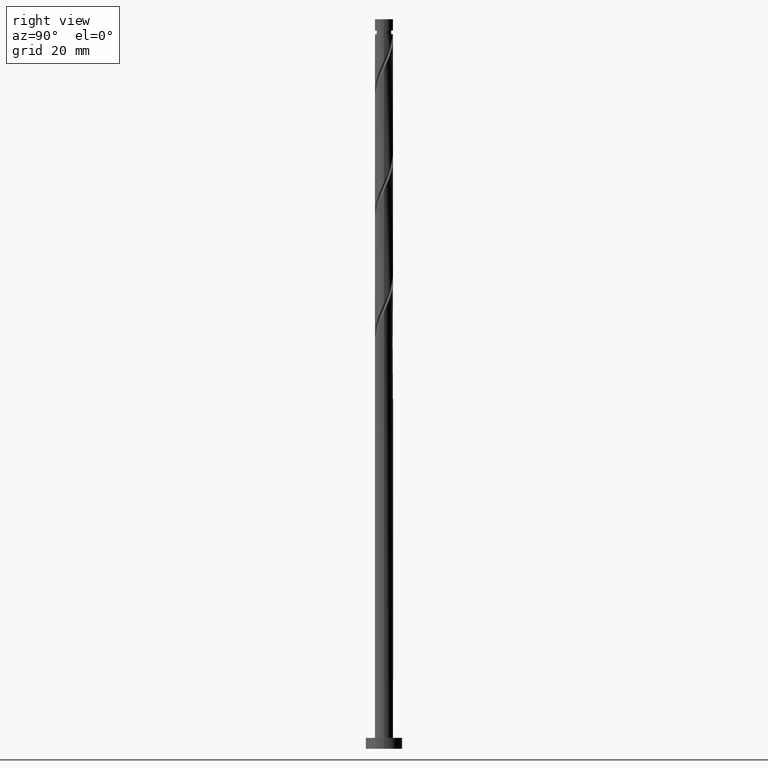
[diagram: clean part render]
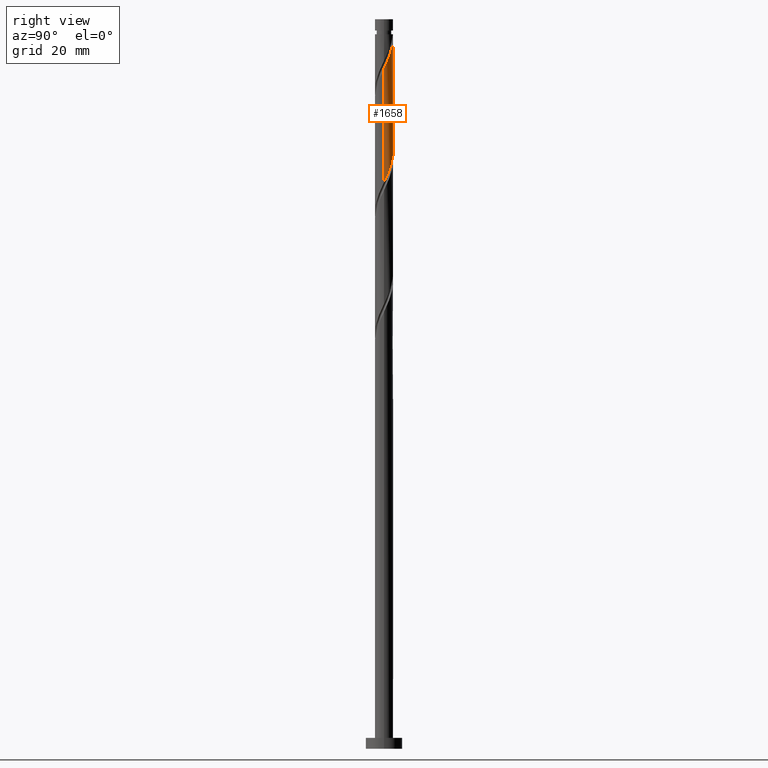
[diagram: same view with one face highlighted and labeled with its STEP entity id]
A machine part, right view. The second image highlights one B-rep face of the part: STEP entity #1658.
In plain terms, the highlighted cylindrical surface (edge-blend (fillet) strip) has radius 2.5 mm, axis along (-0, -0, -1).
Its self-contained STEP definition (entity closure, byte-faithful):
#22 = VERTEX_POINT ( 'NONE', #278 ) ;
#89 = CARTESIAN_POINT ( 'NONE',  ( -1.655019618953360139, 1.902429351286329506, 167.4116340058108676 ) ) ;
#97 = CARTESIAN_POINT ( 'NONE',  ( -0.4974937185533108153, 2.450000000000002398, 195.8838562280330677 ) ) ;
#106 = CARTESIAN_POINT ( 'NONE',  ( 2.384503709418420048, 0.8200423376424310629, 188.2449673391442104 ) ) ;
#114 = CARTESIAN_POINT ( 'NONE',  ( 1.873015379995222940, 1.655842198490353523, 190.3283006724774680 ) ) ;
#139 = EDGE_CURVE ( 'NONE', #1474, #810, #1250, .T. ) ;
#140 = CARTESIAN_POINT ( 'NONE',  ( -0.4974937185533108153, 2.450000000000002842, 195.8838562280330393 ) ) ;
#160 =( BOUNDED_CURVE ( )  B_SPLINE_CURVE ( 2, ( #750, #1162, #502, #106, #1303, #374, #114, #1708, #485, #1021, #1610, #1590, #911, #1732, #97 ),
 .UNSPECIFIED., .F., .F. ) 
 B_SPLINE_CURVE_WITH_KNOTS ( ( 3, 2, 2, 2, 2, 2, 2, 3 ),
 ( 0.6795317669814470163, 0.6875000000000000000, 0.6979166666666666297, 0.7083333333333331483, 0.7187499999999997780, 0.7291666666666665186, 0.7395833333333330373, 0.7499999999999996669 ),
 .UNSPECIFIED. ) 
 CURVE ( )  GEOMETRIC_REPRESENTATION_ITEM ( )  RATIONAL_B_SPLINE_CURVE ( ( 0.9062941362546534929, 0.9031415850403589074, 0.9090909090909338186, 0.9013135103398520753, 0.9090909090909338186, 0.9013135103398520753, 0.9090909090909338186, 0.9013135103398520753, 0.9090909090909338186, 0.9013135103398520753, 0.9090909090909338186, 0.9013135103398520753, 0.9090909090909338186, 0.9013135103398522974, 0.9090909090909335966 ) ) 
 REPRESENTATION_ITEM ( '' )  );
#163 = CARTESIAN_POINT ( 'NONE',  ( 0.000000000000000000, 0.000000000000000000, 200.0000000000000000 ) ) ;
#197 = CARTESIAN_POINT ( 'NONE',  ( 1.902429351286330172, 1.655019618953359251, 159.0783006724775532 ) ) ;
#203 = CARTESIAN_POINT ( 'NONE',  ( 2.495279123588686865, 0.1535646293339463786, 155.6060784502552679 ) ) ;
#217 = CARTESIAN_POINT ( 'NONE',  ( -2.384503709418415163, 0.8200423376424315069, 170.1894117835885822 ) ) ;
#256 = DIRECTION ( 'NONE',  ( -1.000000000000000000, 0.000000000000000000, 0.000000000000000000 ) ) ;
#278 = CARTESIAN_POINT ( 'NONE',  ( -2.500000000000000444, -9.645190966134910391E-16, 171.9474228832430924 ) ) ;
#319 = CARTESIAN_POINT ( 'NONE',  ( 2.370509098548531313, 0.7941578015096449894, 156.9949673391441536 ) ) ;
#348 = CARTESIAN_POINT ( 'NONE',  ( 1.114648691668405522, 2.237757425227745234, 161.1616340058107539 ) ) ;
#374 = CARTESIAN_POINT ( 'NONE',  ( 2.091011141037082410, 1.409255045694377317, 189.6338562280330962 ) ) ;
#408 = LINE ( 'NONE', #1660, #671 ) ;
#443 = EDGE_CURVE ( 'NONE', #22, #1201, #739, .T. ) ;
#448 = CARTESIAN_POINT ( 'NONE',  ( 1.655842198490353967, 1.873015379995218055, 159.7727451169219250 ) ) ;
#456 = CARTESIAN_POINT ( 'NONE',  ( 1.409255045694378650, 2.091011141037077081, 160.4671895613663537 ) ) ;
#470 = DIRECTION ( 'NONE',  ( -0.000000000000000000, -0.000000000000000000, -1.000000000000000000 ) ) ;
#475 = AXIS2_PLACEMENT_3D ( 'NONE', #888, #470, #883 ) ;
#485 = CARTESIAN_POINT ( 'NONE',  ( 1.380630431920286005, 2.084192795893801797, 191.7171895613663537 ) ) ;
#502 = CARTESIAN_POINT ( 'NONE',  ( 2.450000000000002842, 0.4974937185533110373, 187.5505228946996681 ) ) ;
#518 = ORIENTED_EDGE ( 'NONE', *, *, #932, .T. ) ;
#527 = ORIENTED_EDGE ( 'NONE', *, *, #1244, .F. ) ;
#555 = CARTESIAN_POINT ( 'NONE',  ( 2.500000000000003109, -2.093529822106789721E-16, 186.4869562394896718 ) ) ;
#581 = CARTESIAN_POINT ( 'NONE',  ( -2.237757425227747010, 1.114648691668404634, 169.4949673391441820 ) ) ;
#600 = CARTESIAN_POINT ( 'NONE',  ( -0.4820743581320866555, 2.475061956595791646, 164.6338562280330393 ) ) ;
#671 = VECTOR ( 'NONE', #1624, 1000.000000000000000 ) ;
#695 = FACE_OUTER_BOUND ( 'NONE', #1464, .T. ) ;
#700 = CARTESIAN_POINT ( 'NONE',  ( 2.500000000000000000, 3.061616997868383141E-16, 200.0000000000000000 ) ) ;
#724 = CARTESIAN_POINT ( 'NONE',  ( 2.084192795893799577, 1.380630431920282675, 158.3838562280330109 ) ) ;
#739 =( BOUNDED_CURVE ( )  B_SPLINE_CURVE ( 2, ( #1552, #740, #1121, #217, #581, #1292, #870, #89, #1571, #747, #1673, #600, #1130, #1413, #1684, #1153, #348, #456, #448, #197, #724, #1276, #319, #992, #203, #1544, #856 ),
 .UNSPECIFIED., .F., .F. ) 
 B_SPLINE_CURVE_WITH_KNOTS ( ( 3, 2, 2, 2, 2, 2, 2, 2, 2, 2, 2, 2, 2, 3 ),
 ( 0.4295317669814462946, 0.4375000000000000000, 0.4479166666666666852, 0.4583333333333333148, 0.4687500000000000000, 0.4791666666666666852, 0.4895833333333333148, 0.5000000000000000000, 0.5104166666666666297, 0.5208333333333333703, 0.5312500000000000000, 0.5416666666666666297, 0.5520833333333333703, 0.5545317669814460171 ),
 .UNSPECIFIED. ) 
 CURVE ( )  GEOMETRIC_REPRESENTATION_ITEM ( )  RATIONAL_B_SPLINE_CURVE ( ( 0.9062941362546487190, 0.9031415850403529122, 0.9090909090909282675, 0.9013135103398466352, 0.9090909090909282675, 0.9013135103398466352, 0.9090909090909282675, 0.9013135103398466352, 0.9090909090909282675, 0.9013135103398466352, 0.9090909090909282675, 0.9013135103398466352, 0.9090909090909282675, 0.9013135103398466352, 0.9090909090909282675, 0.9013135103398466352, 0.9090909090909282675, 0.9013135103398466352, 0.9090909090909282675, 0.9013135103398466352, 0.9090909090909282675, 0.9013135103398466352, 0.9090909090909282675, 0.9013135103398466352, 0.9090909090909282675, 0.9072628343904222126, 0.9062941362546488300 ) ) 
 REPRESENTATION_ITEM ( '' )  );
#740 = CARTESIAN_POINT ( 'NONE',  ( -2.500000000000000000, 0.2512594538148051893, 171.4139965140538209 ) ) ;
#747 = CARTESIAN_POINT ( 'NONE',  ( -1.106241244887206987, 2.265956240501270980, 166.0227451169219535 ) ) ;
#750 = CARTESIAN_POINT ( 'NONE',  ( 2.500000000000003109, -2.093529822106789721E-16, 186.4869562394896434 ) ) ;
#810 = VERTEX_POINT ( 'NONE', #140 ) ;
#822 = CYLINDRICAL_SURFACE ( 'NONE', #1598, 2.500000000000000000 ) ;
#856 = CARTESIAN_POINT ( 'NONE',  ( 2.500000000000000444, 2.938418643171334019E-15, 155.2807562165764637 ) ) ;
#870 = CARTESIAN_POINT ( 'NONE',  ( -1.873015379995218943, 1.655842198490353301, 168.1060784502552110 ) ) ;
#883 = DIRECTION ( 'NONE',  ( -1.000000000000000000, 0.000000000000000000, 0.000000000000000000 ) ) ;
#888 = CARTESIAN_POINT ( 'NONE',  ( 0.000000000000000000, 0.000000000000000000, 195.8838562280330393 ) ) ;
#911 = CARTESIAN_POINT ( 'NONE',  ( 0.1535646293339501534, 2.495279123588690418, 194.4949673391441252 ) ) ;
#932 = EDGE_CURVE ( 'NONE', #968, #1201, #1074, .T. ) ;
#963 = DIRECTION ( 'NONE',  ( -0.000000000000000000, -0.000000000000000000, -1.000000000000000000 ) ) ;
#968 = VERTEX_POINT ( 'NONE', #555 ) ;
#992 = CARTESIAN_POINT ( 'NONE',  ( 2.475061956595791646, 0.4820743581320850457, 156.3005228946996681 ) ) ;
#1021 = CARTESIAN_POINT ( 'NONE',  ( 1.106241244887210096, 2.265956240501273200, 192.4116340058108676 ) ) ;
#1034 = ORIENTED_EDGE ( 'NONE', *, *, #1530, .F. ) ;
#1074 = LINE ( 'NONE', #700, #1131 ) ;
#1089 = ORIENTED_EDGE ( 'NONE', *, *, #139, .T. ) ;
#1121 = CARTESIAN_POINT ( 'NONE',  ( -2.449999999999999734, 0.4974937185533113149, 170.8838562280330393 ) ) ;
#1130 = CARTESIAN_POINT ( 'NONE',  ( -0.1535646293339474611, 2.495279123588687753, 163.9394117835885822 ) ) ;
#1131 = VECTOR ( 'NONE', #963, 1000.000000000000000 ) ;
#1153 = CARTESIAN_POINT ( 'NONE',  ( 0.8200423376424332833, 2.384503709418414275, 161.8560784502552679 ) ) ;
#1156 = CARTESIAN_POINT ( 'NONE',  ( 2.500000000000000444, 2.938418643171334019E-15, 155.2807562165764637 ) ) ;
#1162 = CARTESIAN_POINT ( 'NONE',  ( 2.499999999999998224, 0.2512594538148265610, 187.0203826086789149 ) ) ;
#1201 = VERTEX_POINT ( 'NONE', #1156 ) ;
#1240 = DIRECTION ( 'NONE',  ( -0.000000000000000000, -0.000000000000000000, -1.000000000000000000 ) ) ;
#1244 = EDGE_CURVE ( 'NONE', #968, #810, #160, .T. ) ;
#1250 = CIRCLE ( 'NONE', #475, 2.499999999999988454 ) ;
#1276 = CARTESIAN_POINT ( 'NONE',  ( 2.265956240501271868, 1.106241244887205433, 157.6894117835886107 ) ) ;
#1292 = CARTESIAN_POINT ( 'NONE',  ( -2.091011141037077969, 1.409255045694377539, 168.8005228946997249 ) ) ;
#1295 = CARTESIAN_POINT ( 'NONE',  ( -2.499999999999988454, 0.000000000000000000, 195.8838562280330393 ) ) ;
#1303 = CARTESIAN_POINT ( 'NONE',  ( 2.237757425227750119, 1.114648691668403968, 188.9394117835885254 ) ) ;
#1350 = ORIENTED_EDGE ( 'NONE', *, *, #443, .F. ) ;
#1413 = CARTESIAN_POINT ( 'NONE',  ( 0.1749450994641913448, 2.515496290581585193, 163.2449673391441252 ) ) ;
#1464 = EDGE_LOOP ( 'NONE', ( #527, #518, #1350, #1034, #1089 ) ) ;
#1474 = VERTEX_POINT ( 'NONE', #1295 ) ;
#1530 = EDGE_CURVE ( 'NONE', #1474, #22, #408, .T. ) ;
#1544 = CARTESIAN_POINT ( 'NONE',  ( 2.499999999999999556, 0.07685487914419084077, 155.4439199046045701 ) ) ;
#1552 = CARTESIAN_POINT ( 'NONE',  ( -2.500000000000000444, -9.645190966134910391E-16, 171.9474228832430924 ) ) ;
#1571 = CARTESIAN_POINT ( 'NONE',  ( -1.380630431920283341, 2.084192795893799133, 166.7171895613663253 ) ) ;
#1590 = CARTESIAN_POINT ( 'NONE',  ( 0.4820743581320889870, 2.475061956595793866, 193.8005228946996965 ) ) ;
#1598 = AXIS2_PLACEMENT_3D ( 'NONE', #163, #1240, #256 ) ;
#1610 = CARTESIAN_POINT ( 'NONE',  ( 0.7941578015096493193, 2.370509098548532645, 193.1060784502553247 ) ) ;
#1624 = DIRECTION ( 'NONE',  ( -0.000000000000000000, -0.000000000000000000, -1.000000000000000000 ) ) ;
#1658 = ADVANCED_FACE ( 'NONE', ( #695 ), #822, .T. ) ;
#1660 = CARTESIAN_POINT ( 'NONE',  ( -2.500000000000000000, 0.000000000000000000, 200.0000000000000000 ) ) ;
#1673 = CARTESIAN_POINT ( 'NONE',  ( -0.7941578015096464327, 2.370509098548530424, 165.3283006724774964 ) ) ;
#1684 = CARTESIAN_POINT ( 'NONE',  ( 0.4974937185533118145, 2.449999999999999734, 162.5505228946996965 ) ) ;
#1708 = CARTESIAN_POINT ( 'NONE',  ( 1.655019618953363914, 1.902429351286329950, 191.0227451169218966 ) ) ;
#1732 = CARTESIAN_POINT ( 'NONE',  ( -0.1749450994641780499, 2.515496290581586969, 195.1894117835885254 ) ) ;